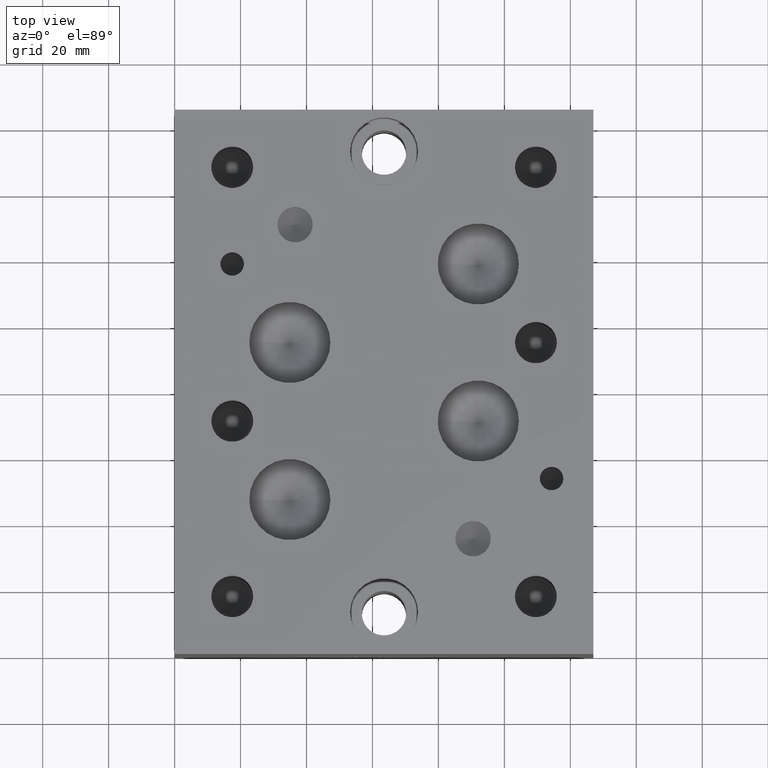
[diagram: clean part render]
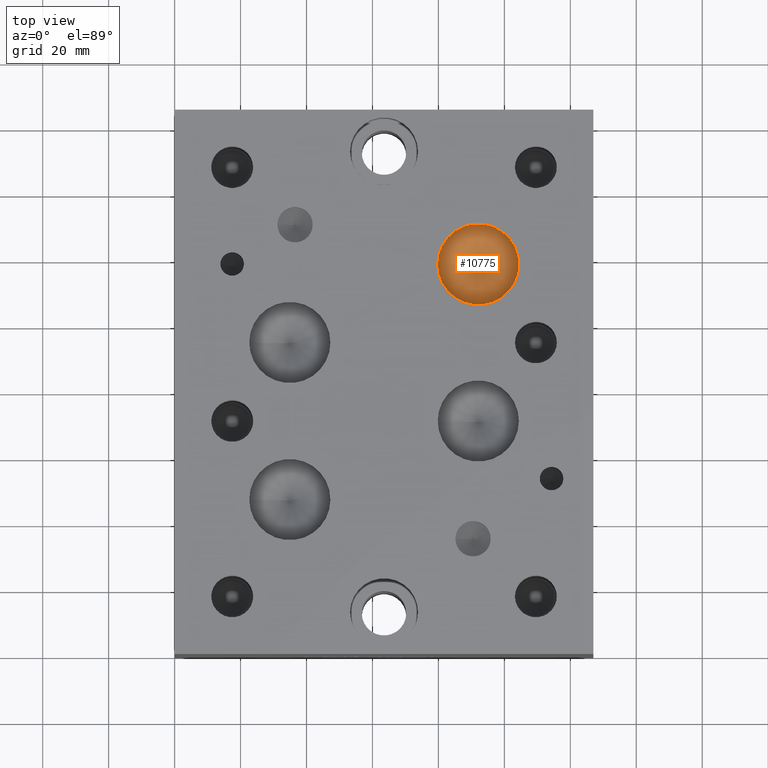
[diagram: same view with one face highlighted and labeled with its STEP entity id]
A machine part, top view. The second image highlights one B-rep face of the part: STEP entity #10775.
In plain terms, the highlighted conical surface has half-angle 60 deg.
Its self-contained STEP definition (entity closure, byte-faithful):
#98=CONICAL_SURFACE('',#11320,6.15315,1.0471975511966);
#248=CIRCLE('',#11321,12.3063);
#249=CIRCLE('',#11322,12.3063);
#1387=FACE_OUTER_BOUND('',#1996,.T.);
#1996=EDGE_LOOP('',(#9345,#9346,#9347,#9348));
#3006=LINE('',#18574,#3985);
#3985=VECTOR('',#13362,6.15315);
#4968=VERTEX_POINT('',#18570);
#4969=VERTEX_POINT('',#18571);
#4970=VERTEX_POINT('',#18573);
#6452=EDGE_CURVE('',#4968,#4969,#248,.T.);
#6453=EDGE_CURVE('',#4969,#4970,#3006,.T.);
#6454=EDGE_CURVE('',#4969,#4968,#249,.T.);
#9345=ORIENTED_EDGE('',*,*,#6452,.T.);
#9346=ORIENTED_EDGE('',*,*,#6453,.T.);
#9347=ORIENTED_EDGE('',*,*,#6453,.F.);
#9348=ORIENTED_EDGE('',*,*,#6454,.T.);
#10775=ADVANCED_FACE('',(#1387),#98,.F.);
#11320=AXIS2_PLACEMENT_3D('',#18569,#13358,#13359);
#11321=AXIS2_PLACEMENT_3D('',#18572,#13360,#13361);
#11322=AXIS2_PLACEMENT_3D('',#18575,#13363,#13364);
#13358=DIRECTION('center_axis',(0.,0.,1.));
#13359=DIRECTION('ref_axis',(1.,0.,0.));
#13360=DIRECTION('center_axis',(0.,0.,1.));
#13361=DIRECTION('ref_axis',(1.,0.,0.));
#13362=DIRECTION('',(0.866025403784439,1.06057523872491E-16,-0.5));
#13363=DIRECTION('center_axis',(0.,0.,1.));
#13364=DIRECTION('ref_axis',(1.,0.,0.));
#18569=CARTESIAN_POINT('Origin',(92.075,118.2624,65.5424271911359));
#18570=CARTESIAN_POINT('',(104.3813,118.2624,69.09495));
#18571=CARTESIAN_POINT('',(79.7687,118.2624,69.09495));
#18572=CARTESIAN_POINT('Origin',(92.075,118.2624,69.09495));
#18573=CARTESIAN_POINT('',(92.075,118.2624,61.9899043822717));
#18574=CARTESIAN_POINT('',(85.92185,118.2624,65.5424271911359));
#18575=CARTESIAN_POINT('Origin',(92.075,118.2624,69.09495));